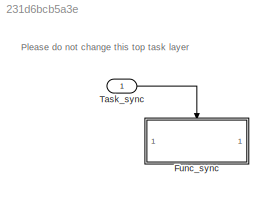
MODEL slx_231d6bcb5a3e
KIND model
CONFIG AbsTol = auto
CONFIG EnableMultiTasking = off
CONFIG FixedStep = auto
CONFIG MaxStep = auto
CONFIG MinStep = auto
CONFIG RelTol = 1e-3
CONFIG SampleTimeConstraint = Unconstrained
CONFIG SolverName = FixedStepAuto
CONFIG StartTime = 0.0
CONFIG StopTime = 20
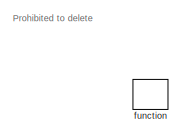
[diagram: Func_sync - part 1/2, top left region]
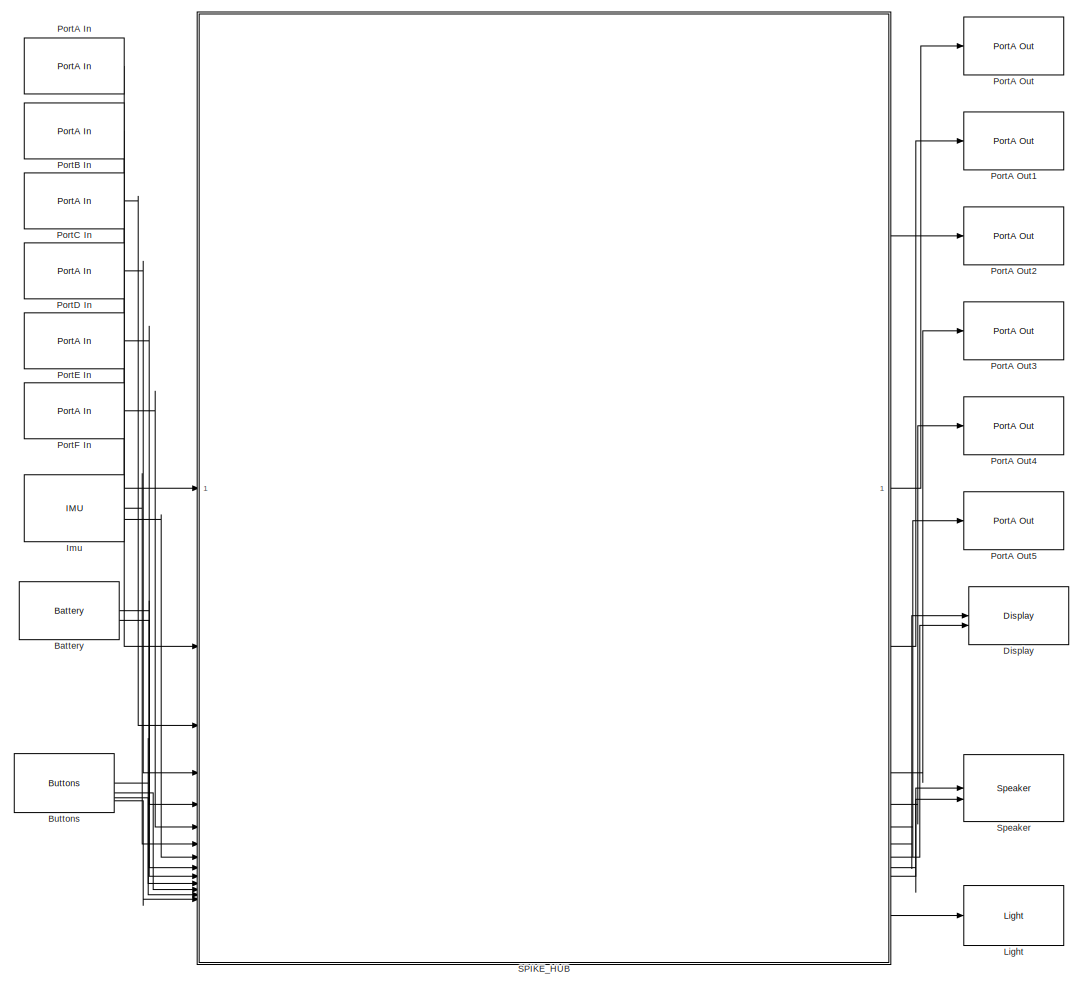
[diagram: Func_sync - part 2/2, most of the canvas]
BLOCK [SubSystem] Func_sync
  TreatAsAtomicUnit = on
BLOCK [Reference] Func_sync/Battery  REF=spikertlib/Large hub/Battery  (lib defined in slx_7beca6525a47)
  SourceBlock = spikertlib/Large hub/Battery
  SourceType = Battery
BLOCK [Reference] Func_sync/Buttons  REF=spikertlib/Large hub/Buttons  (lib defined in slx_7beca6525a47)
  SourceBlock = spikertlib/Large hub/Buttons
  SourceType = Buttons
BLOCK [Reference] Func_sync/Display  REF=spikertlib/Large hub/Display  (lib defined in slx_7beca6525a47)
  SourceBlock = spikertlib/Large hub/Display
  SourceType = Pup device
BLOCK [Reference] Func_sync/Imu  REF=spikertlib/Large hub/IMU  (lib defined in slx_7beca6525a47)
  SourceBlock = spikertlib/Large hub/IMU
  SourceType = Imu
BLOCK [Reference] Func_sync/Light  REF=spikertlib/Large hub/Light  (lib defined in slx_7beca6525a47)
  SourceBlock = spikertlib/Large hub/Light
  SourceType = Light
BLOCK [Reference] Func_sync/PortA In  REF=spikertlib/Powered Up device/PortA In  (lib defined in slx_7beca6525a47)
  SourceBlock = spikertlib/Powered Up device/PortA In
  SourceType = Pup device
BLOCK [Reference] Func_sync/PortA Out  REF=spikertlib/Powered Up device/PortA Out  (lib defined in slx_7beca6525a47)
  AttributesFormatString = PortID = %<PortID>\nMode = %<Mode>
  SourceBlock = spikertlib/Powered Up device/PortA Out
  SourceType = Pup device
BLOCK [Reference] Func_sync/PortA Out1  REF=spikertlib/Powered Up device/PortA Out  (lib defined in slx_7beca6525a47)
  AttributesFormatString = PortID = %<PortID>\nMode = %<Mode>
  SourceBlock = spikertlib/Powered Up device/PortA Out
  SourceType = Pup device
BLOCK [Reference] Func_sync/PortA Out2  REF=spikertlib/Powered Up device/PortA Out  (lib defined in slx_7beca6525a47)
  AttributesFormatString = PortID = %<PortID>\nMode = %<Mode>
  SourceBlock = spikertlib/Powered Up device/PortA Out
  SourceType = Pup device
BLOCK [Reference] Func_sync/PortA Out3  REF=spikertlib/Powered Up device/PortA Out  (lib defined in slx_7beca6525a47)
  AttributesFormatString = PortID = %<PortID>\nMode = %<Mode>
  SourceBlock = spikertlib/Powered Up device/PortA Out
  SourceType = Pup device
BLOCK [Reference] Func_sync/PortA Out4  REF=spikertlib/Powered Up device/PortA Out  (lib defined in slx_7beca6525a47)
  AttributesFormatString = PortID = %<PortID>\nMode = %<Mode>
  SourceBlock = spikertlib/Powered Up device/PortA Out
  SourceType = Pup device
BLOCK [Reference] Func_sync/PortA Out5  REF=spikertlib/Powered Up device/PortA Out  (lib defined in slx_7beca6525a47)
  AttributesFormatString = PortID = %<PortID>\nMode = %<Mode>
  SourceBlock = spikertlib/Powered Up device/PortA Out
  SourceType = Pup device
BLOCK [Reference] Func_sync/PortB In  REF=spikertlib/Powered Up device/PortA In  (lib defined in slx_7beca6525a47)
  SourceBlock = spikertlib/Powered Up device/PortA In
  SourceType = Pup device
BLOCK [Reference] Func_sync/PortC In  REF=spikertlib/Powered Up device/PortA In  (lib defined in slx_7beca6525a47)
  SourceBlock = spikertlib/Powered Up device/PortA In
  SourceType = Pup device
BLOCK [Reference] Func_sync/PortD In  REF=spikertlib/Powered Up device/PortA In  (lib defined in slx_7beca6525a47)
  SourceBlock = spikertlib/Powered Up device/PortA In
  SourceType = Pup device
BLOCK [Reference] Func_sync/PortE In  REF=spikertlib/Powered Up device/PortA In  (lib defined in slx_7beca6525a47)
  SourceBlock = spikertlib/Powered Up device/PortA In
  SourceType = Pup device
BLOCK [Reference] Func_sync/PortF In  REF=spikertlib/Powered Up device/PortA In  (lib defined in slx_7beca6525a47)
  SourceBlock = spikertlib/Powered Up device/PortA In
  SourceType = Pup device
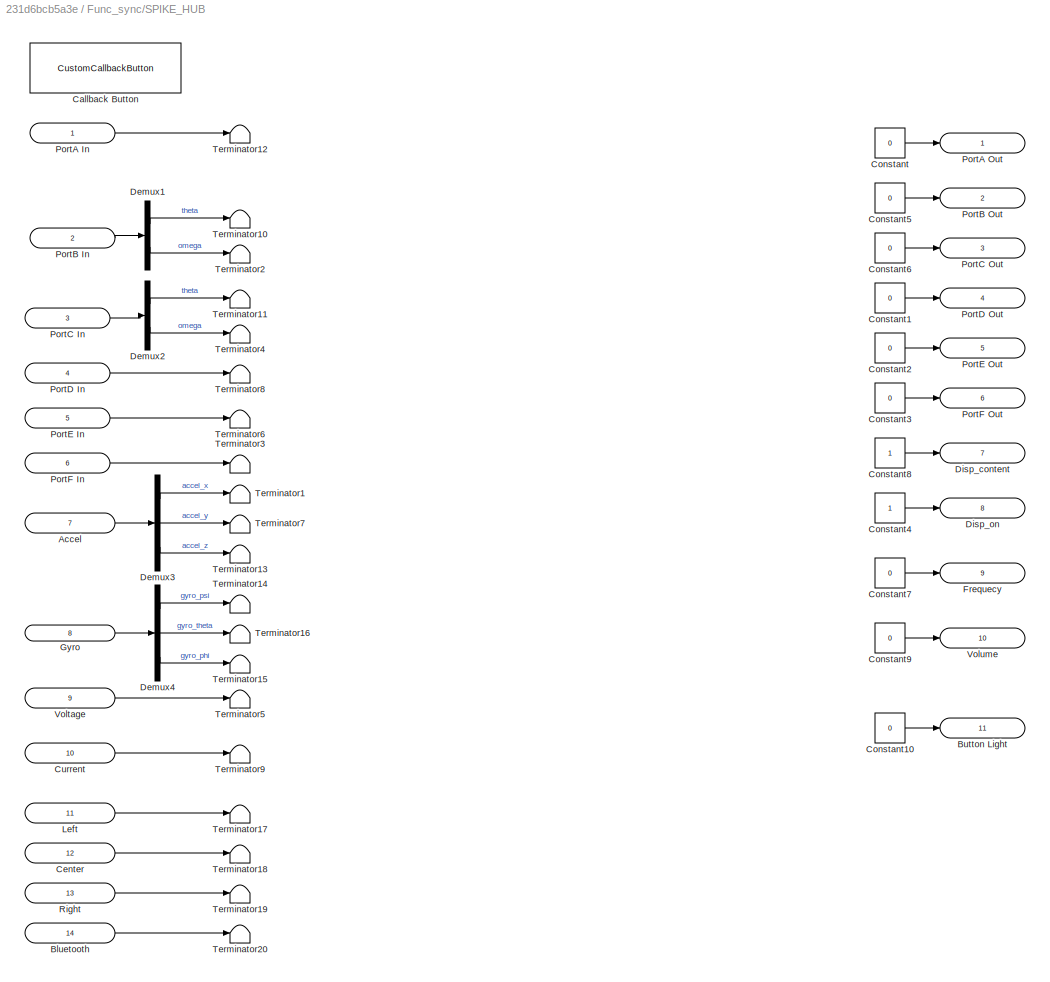
BLOCK [SubSystem] Func_sync/SPIKE_HUB
  TreatAsAtomicUnit = on
BLOCK [Inport] Func_sync/SPIKE_HUB/Accel
  Port = 7
BLOCK [Inport] Func_sync/SPIKE_HUB/Bluetooth
  Port = 14
BLOCK [Outport] Func_sync/SPIKE_HUB/Button Light
  Port = 11
BLOCK [CustomCallbackButton] Func_sync/SPIKE_HUB/Callback Button
  Configuration = {"components":[{"name":"BackgroundImageComponent","settings":{"image":{"size":[0,0],"src":"default","srcOrientation":"Right"},"position":[0,0,1,1]}},{"name":"ButtonStateComponent","settings":{"buttonType":"momentary","clickFcn":"controlsetupspikert_callback;\ncopyspikert(2)\ncopyspikert(3)","latched":false,"offValue":null,"onValue":1,"position":[0,0,1,1],"pressDelay":"500","pressFcn":"","repeatInt...<+2094ch>
  CustomBackgroundColor = {"color":[0.8509803921568627,0.3254901960784314,0.09803921568627451],"show":true}
  Description = Generate and build code. write executable to SPIKE
BLOCK [Inport] Func_sync/SPIKE_HUB/Center
  Port = 12
BLOCK [Constant] Func_sync/SPIKE_HUB/Constant
  Value = 0
BLOCK [Constant] Func_sync/SPIKE_HUB/Constant1
  Value = 0
BLOCK [Constant] Func_sync/SPIKE_HUB/Constant10
  Value = 0
BLOCK [Constant] Func_sync/SPIKE_HUB/Constant2
  Value = 0
BLOCK [Constant] Func_sync/SPIKE_HUB/Constant3
  Value = 0
BLOCK [Constant] Func_sync/SPIKE_HUB/Constant4
BLOCK [Constant] Func_sync/SPIKE_HUB/Constant5
  Value = 0
BLOCK [Constant] Func_sync/SPIKE_HUB/Constant6
  Value = 0
BLOCK [Constant] Func_sync/SPIKE_HUB/Constant7
  Value = 0
BLOCK [Constant] Func_sync/SPIKE_HUB/Constant8
BLOCK [Constant] Func_sync/SPIKE_HUB/Constant9
  Value = 0
BLOCK [Inport] Func_sync/SPIKE_HUB/Current
  Port = 10
BLOCK [Demux] Func_sync/SPIKE_HUB/Demux1
  Outputs = 2
BLOCK [Demux] Func_sync/SPIKE_HUB/Demux2
  Outputs = 2
BLOCK [Demux] Func_sync/SPIKE_HUB/Demux3
  Outputs = 3
BLOCK [Demux] Func_sync/SPIKE_HUB/Demux4
  Outputs = 3
BLOCK [Outport] Func_sync/SPIKE_HUB/Disp_content
  Port = 7
BLOCK [Outport] Func_sync/SPIKE_HUB/Disp_on
  Port = 8
BLOCK [Outport] Func_sync/SPIKE_HUB/Frequecy
  Port = 9
BLOCK [Inport] Func_sync/SPIKE_HUB/Gyro
  Port = 8
BLOCK [Inport] Func_sync/SPIKE_HUB/Left
  Port = 11
BLOCK [Inport] Func_sync/SPIKE_HUB/PortA In
BLOCK [Outport] Func_sync/SPIKE_HUB/PortA Out
BLOCK [Inport] Func_sync/SPIKE_HUB/PortB In
  Port = 2
BLOCK [Outport] Func_sync/SPIKE_HUB/PortB Out
  Port = 2
BLOCK [Inport] Func_sync/SPIKE_HUB/PortC In
  Port = 3
BLOCK [Outport] Func_sync/SPIKE_HUB/PortC Out
  Port = 3
BLOCK [Inport] Func_sync/SPIKE_HUB/PortD In
  Port = 4
BLOCK [Outport] Func_sync/SPIKE_HUB/PortD Out
  Port = 4
BLOCK [Inport] Func_sync/SPIKE_HUB/PortE In
  Port = 5
BLOCK [Outport] Func_sync/SPIKE_HUB/PortE Out
  Port = 5
BLOCK [Inport] Func_sync/SPIKE_HUB/PortF In
  Port = 6
BLOCK [Outport] Func_sync/SPIKE_HUB/PortF Out
  Port = 6
BLOCK [Inport] Func_sync/SPIKE_HUB/Right
  Port = 13
BLOCK [Terminator] Func_sync/SPIKE_HUB/Terminator1
BLOCK [Terminator] Func_sync/SPIKE_HUB/Terminator10
BLOCK [Terminator] Func_sync/SPIKE_HUB/Terminator11
BLOCK [Terminator] Func_sync/SPIKE_HUB/Terminator12
BLOCK [Terminator] Func_sync/SPIKE_HUB/Terminator13
BLOCK [Terminator] Func_sync/SPIKE_HUB/Terminator14
BLOCK [Terminator] Func_sync/SPIKE_HUB/Terminator15
BLOCK [Terminator] Func_sync/SPIKE_HUB/Terminator16
BLOCK [Terminator] Func_sync/SPIKE_HUB/Terminator17
BLOCK [Terminator] Func_sync/SPIKE_HUB/Terminator18
BLOCK [Terminator] Func_sync/SPIKE_HUB/Terminator19
BLOCK [Terminator] Func_sync/SPIKE_HUB/Terminator2
BLOCK [Terminator] Func_sync/SPIKE_HUB/Terminator20
BLOCK [Terminator] Func_sync/SPIKE_HUB/Terminator3
BLOCK [Terminator] Func_sync/SPIKE_HUB/Terminator4
BLOCK [Terminator] Func_sync/SPIKE_HUB/Terminator5
BLOCK [Terminator] Func_sync/SPIKE_HUB/Terminator6
BLOCK [Terminator] Func_sync/SPIKE_HUB/Terminator7
BLOCK [Terminator] Func_sync/SPIKE_HUB/Terminator8
BLOCK [Terminator] Func_sync/SPIKE_HUB/Terminator9
BLOCK [Inport] Func_sync/SPIKE_HUB/Voltage
  Port = 9
BLOCK [Outport] Func_sync/SPIKE_HUB/Volume
  Port = 10
BLOCK [Reference] Func_sync/Speaker  REF=spikertlib/Large hub/Speaker  (lib defined in slx_7beca6525a47)
  SourceBlock = spikertlib/Large hub/Speaker
  SourceType = Speaker
BLOCK [TriggerPort] Func_sync/function
  StatesWhenEnabling = held
  TriggerType = function-call
  VariantControl = (inherit)
BLOCK [Inport] Task_sync
  OutputFunctionCall = on
ANNOTATION (root): Please do not change this top task layer
ANNOTATION Func_sync: Prohibited to delete
LINE Func_sync/Battery:1 -> Func_sync/SPIKE_HUB:9
LINE Func_sync/Battery:2 -> Func_sync/SPIKE_HUB:10
LINE Func_sync/Buttons:1 -> Func_sync/SPIKE_HUB:11
LINE Func_sync/Buttons:2 -> Func_sync/SPIKE_HUB:12
LINE Func_sync/Buttons:3 -> Func_sync/SPIKE_HUB:13
LINE Func_sync/Buttons:4 -> Func_sync/SPIKE_HUB:14
LINE Func_sync/Imu:1 -> Func_sync/SPIKE_HUB:7
LINE Func_sync/Imu:2 -> Func_sync/SPIKE_HUB:8
LINE Func_sync/PortA In:1 -> Func_sync/SPIKE_HUB:1
LINE Func_sync/PortB In:1 -> Func_sync/SPIKE_HUB:2
LINE Func_sync/PortC In:1 -> Func_sync/SPIKE_HUB:3
LINE Func_sync/PortD In:1 -> Func_sync/SPIKE_HUB:4
LINE Func_sync/PortE In:1 -> Func_sync/SPIKE_HUB:5
LINE Func_sync/PortF In:1 -> Func_sync/SPIKE_HUB:6
LINE Func_sync/SPIKE_HUB/Accel:1 -> Func_sync/SPIKE_HUB/Demux3:1
LINE Func_sync/SPIKE_HUB/Bluetooth:1 -> Func_sync/SPIKE_HUB/Terminator20:1
LINE Func_sync/SPIKE_HUB/Center:1 -> Func_sync/SPIKE_HUB/Terminator18:1
LINE Func_sync/SPIKE_HUB/Constant10:1 -> Func_sync/SPIKE_HUB/Button Light:1
LINE Func_sync/SPIKE_HUB/Constant1:1 -> Func_sync/SPIKE_HUB/PortD Out:1
LINE Func_sync/SPIKE_HUB/Constant2:1 -> Func_sync/SPIKE_HUB/PortE Out:1
LINE Func_sync/SPIKE_HUB/Constant3:1 -> Func_sync/SPIKE_HUB/PortF Out:1
LINE Func_sync/SPIKE_HUB/Constant4:1 -> Func_sync/SPIKE_HUB/Disp_on:1
LINE Func_sync/SPIKE_HUB/Constant5:1 -> Func_sync/SPIKE_HUB/PortB Out:1
LINE Func_sync/SPIKE_HUB/Constant6:1 -> Func_sync/SPIKE_HUB/PortC Out:1
LINE Func_sync/SPIKE_HUB/Constant7:1 -> Func_sync/SPIKE_HUB/Frequecy:1
LINE Func_sync/SPIKE_HUB/Constant8:1 -> Func_sync/SPIKE_HUB/Disp_content:1
LINE Func_sync/SPIKE_HUB/Constant9:1 -> Func_sync/SPIKE_HUB/Volume:1
LINE Func_sync/SPIKE_HUB/Constant:1 -> Func_sync/SPIKE_HUB/PortA Out:1
LINE Func_sync/SPIKE_HUB/Current:1 -> Func_sync/SPIKE_HUB/Terminator9:1
LINE Func_sync/SPIKE_HUB/Demux1:1 -> Func_sync/SPIKE_HUB/Terminator10:1
LINE Func_sync/SPIKE_HUB/Demux1:2 -> Func_sync/SPIKE_HUB/Terminator2:1
LINE Func_sync/SPIKE_HUB/Demux2:1 -> Func_sync/SPIKE_HUB/Terminator11:1
LINE Func_sync/SPIKE_HUB/Demux2:2 -> Func_sync/SPIKE_HUB/Terminator4:1
LINE Func_sync/SPIKE_HUB/Demux3:1 -> Func_sync/SPIKE_HUB/Terminator1:1
LINE Func_sync/SPIKE_HUB/Demux3:2 -> Func_sync/SPIKE_HUB/Terminator7:1
LINE Func_sync/SPIKE_HUB/Demux3:3 -> Func_sync/SPIKE_HUB/Terminator13:1
LINE Func_sync/SPIKE_HUB/Demux4:1 -> Func_sync/SPIKE_HUB/Terminator14:1
LINE Func_sync/SPIKE_HUB/Demux4:2 -> Func_sync/SPIKE_HUB/Terminator16:1
LINE Func_sync/SPIKE_HUB/Demux4:3 -> Func_sync/SPIKE_HUB/Terminator15:1
LINE Func_sync/SPIKE_HUB/Gyro:1 -> Func_sync/SPIKE_HUB/Demux4:1
LINE Func_sync/SPIKE_HUB/Left:1 -> Func_sync/SPIKE_HUB/Terminator17:1
LINE Func_sync/SPIKE_HUB/PortA In:1 -> Func_sync/SPIKE_HUB/Terminator12:1
LINE Func_sync/SPIKE_HUB/PortB In:1 -> Func_sync/SPIKE_HUB/Demux1:1
LINE Func_sync/SPIKE_HUB/PortC In:1 -> Func_sync/SPIKE_HUB/Demux2:1
LINE Func_sync/SPIKE_HUB/PortD In:1 -> Func_sync/SPIKE_HUB/Terminator8:1
LINE Func_sync/SPIKE_HUB/PortE In:1 -> Func_sync/SPIKE_HUB/Terminator6:1
LINE Func_sync/SPIKE_HUB/PortF In:1 -> Func_sync/SPIKE_HUB/Terminator3:1
LINE Func_sync/SPIKE_HUB/Right:1 -> Func_sync/SPIKE_HUB/Terminator19:1
LINE Func_sync/SPIKE_HUB/Voltage:1 -> Func_sync/SPIKE_HUB/Terminator5:1
LINE Func_sync/SPIKE_HUB:1 -> Func_sync/PortA Out:1
LINE Func_sync/SPIKE_HUB:10 -> Func_sync/Speaker:2
LINE Func_sync/SPIKE_HUB:11 -> Func_sync/Light:1
LINE Func_sync/SPIKE_HUB:2 -> Func_sync/PortA Out1:1
LINE Func_sync/SPIKE_HUB:3 -> Func_sync/PortA Out2:1
LINE Func_sync/SPIKE_HUB:4 -> Func_sync/PortA Out3:1
LINE Func_sync/SPIKE_HUB:5 -> Func_sync/PortA Out4:1
LINE Func_sync/SPIKE_HUB:6 -> Func_sync/PortA Out5:1
LINE Func_sync/SPIKE_HUB:7 -> Func_sync/Display:1
LINE Func_sync/SPIKE_HUB:8 -> Func_sync/Display:2
LINE Func_sync/SPIKE_HUB:9 -> Func_sync/Speaker:1
LINE Task_sync:1 -> Func_sync:trigger
